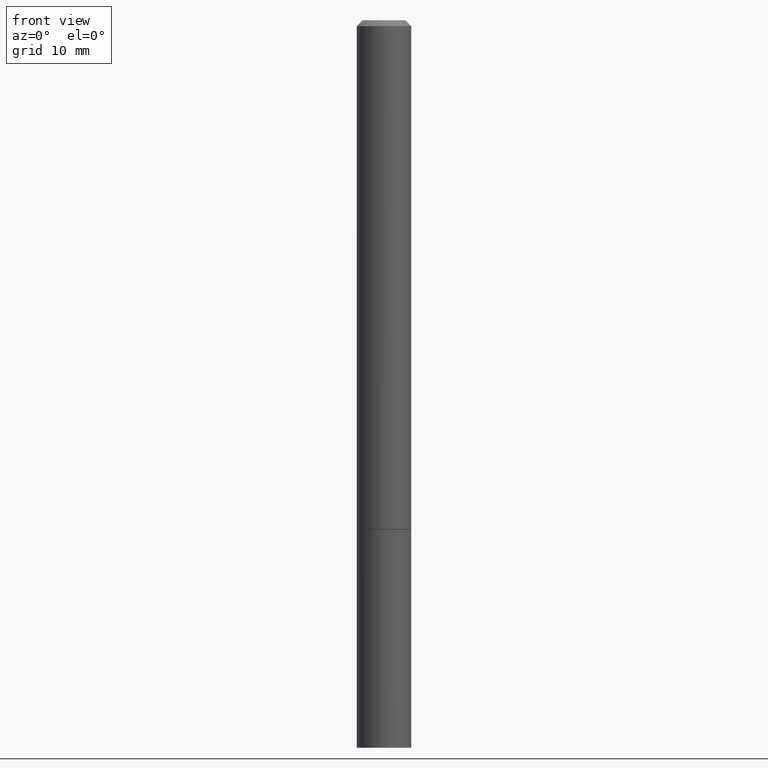
[diagram: clean part render]
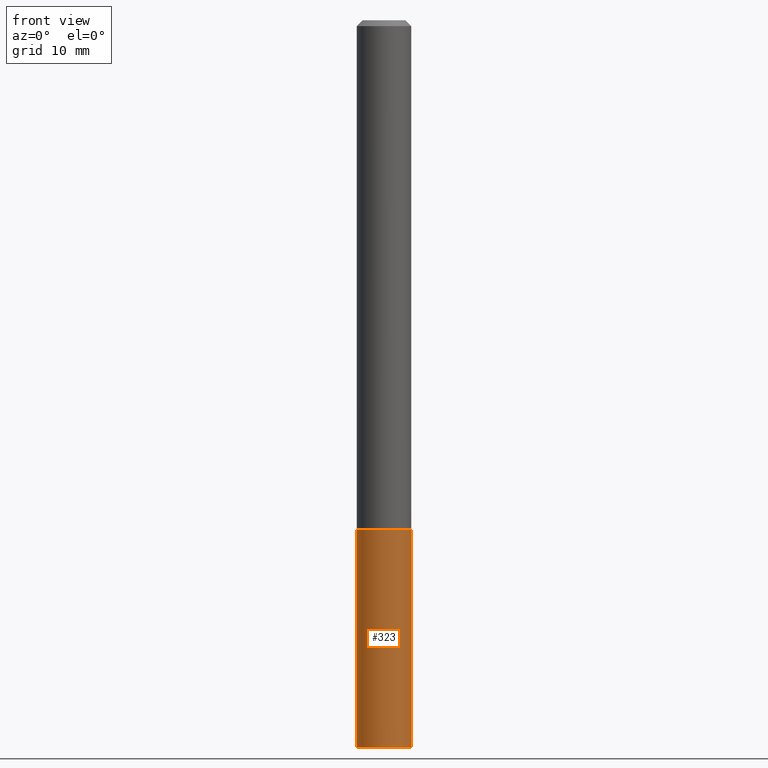
[diagram: same view with one face highlighted and labeled with its STEP entity id]
A machine part, front view. The second image highlights one B-rep face of the part: STEP entity #323.
In plain terms, the highlighted cylindrical surface (edge-blend (fillet) strip) has radius 2.3813 mm, axis along (-0, 0, 1).
Its self-contained STEP definition (entity closure, byte-faithful):
#2 = DIRECTION ( 'NONE',  ( 1.000000000000000000, -6.982962677686261189E-15, 0.000000000000000000 ) ) ;
#7 = DIRECTION ( 'NONE',  ( 1.000000000000000000, -6.982962677686272233E-15, 0.000000000000000000 ) ) ;
#19 = CARTESIAN_POINT ( 'NONE',  ( 0.000000000000000000, 0.000000000000000000, 0.000000000000000000 ) ) ;
#21 = VERTEX_POINT ( 'NONE', #247 ) ;
#39 = CIRCLE ( 'NONE', #70, 0.09375000000000001388 ) ;
#52 = ORIENTED_EDGE ( 'NONE', *, *, #344, .T. ) ;
#54 = EDGE_CURVE ( 'NONE', #141, #390, #113, .T. ) ;
#70 = AXIS2_PLACEMENT_3D ( 'NONE', #271, #188, #7 ) ;
#72 = CARTESIAN_POINT ( 'NONE',  ( -0.09375000000000001388, -6.753264030266591277E-15, -1.750000000000000222 ) ) ;
#106 = CARTESIAN_POINT ( 'NONE',  ( -0.09374999999999984734, -8.074050596074776650E-15, -2.500000000000000000 ) ) ;
#110 = CARTESIAN_POINT ( 'NONE',  ( 0.09375000000000001388, -6.546527510330875041E-16, 4.571415727308690506E-30 ) ) ;
#113 = CIRCLE ( 'NONE', #210, 0.09375000000000001388 ) ;
#116 = EDGE_CURVE ( 'NONE', #268, #21, #39, .T. ) ;
#128 = CARTESIAN_POINT ( 'NONE',  ( -0.09375000000000001388, 6.661338147750940229E-16, -4.611501647113973995E-30 ) ) ;
#131 = DIRECTION ( 'NONE',  ( -2.445468806185136877E-29, 3.491481338843145188E-15, 1.000000000000000000 ) ) ;
#138 = DIRECTION ( 'NONE',  ( -2.445468806185136877E-29, 3.491481338843145188E-15, 1.000000000000000000 ) ) ;
#141 = VERTEX_POINT ( 'NONE', #72 ) ;
#150 = EDGE_CURVE ( 'NONE', #268, #141, #194, .T. ) ;
#166 = DIRECTION ( 'NONE',  ( -2.445468806185136597E-29, 3.491481338843145583E-15, 1.000000000000000000 ) ) ;
#167 = VECTOR ( 'NONE', #138, 39.37007874015748143 ) ;
#173 = CYLINDRICAL_SURFACE ( 'NONE', #379, 0.09375000000000001388 ) ;
#176 = CARTESIAN_POINT ( 'NONE',  ( 0.09375000000000001388, -6.764745094008592175E-15, -1.750000000000000222 ) ) ;
#188 = DIRECTION ( 'NONE',  ( -2.445468806185136597E-29, 3.491481338843145583E-15, 1.000000000000000000 ) ) ;
#189 = ORIENTED_EDGE ( 'NONE', *, *, #150, .F. ) ;
#194 = LINE ( 'NONE', #128, #373 ) ;
#207 = EDGE_LOOP ( 'NONE', ( #189, #334, #52, #360 ) ) ;
#210 = AXIS2_PLACEMENT_3D ( 'NONE', #310, #340, #2 ) ;
#227 = FACE_OUTER_BOUND ( 'NONE', #207, .T. ) ;
#247 = CARTESIAN_POINT ( 'NONE',  ( 0.09374999999999984734, -9.371875034398942871E-15, -2.500000000000000000 ) ) ;
#268 = VERTEX_POINT ( 'NONE', #106 ) ;
#271 = CARTESIAN_POINT ( 'NONE',  ( 6.113672015462842613E-29, -8.728703347107864943E-15, -2.500000000000000000 ) ) ;
#279 = DIRECTION ( 'NONE',  ( 1.000000000000000000, -6.982962677686265922E-15, 4.876176775795935793E-29 ) ) ;
#282 = LINE ( 'NONE', #110, #167 ) ;
#310 = CARTESIAN_POINT ( 'NONE',  ( 4.279570410823989044E-29, -6.110092342975505460E-15, -1.750000000000000222 ) ) ;
#323 = ADVANCED_FACE ( 'NONE', ( #227 ), #173, .T. ) ;
#334 = ORIENTED_EDGE ( 'NONE', *, *, #116, .T. ) ;
#340 = DIRECTION ( 'NONE',  ( -2.445468806185136597E-29, 3.491481338843145583E-15, 1.000000000000000000 ) ) ;
#344 = EDGE_CURVE ( 'NONE', #21, #390, #282, .T. ) ;
#360 = ORIENTED_EDGE ( 'NONE', *, *, #54, .F. ) ;
#373 = VECTOR ( 'NONE', #131, 39.37007874015748143 ) ;
#379 = AXIS2_PLACEMENT_3D ( 'NONE', #19, #166, #279 ) ;
#390 = VERTEX_POINT ( 'NONE', #176 ) ;